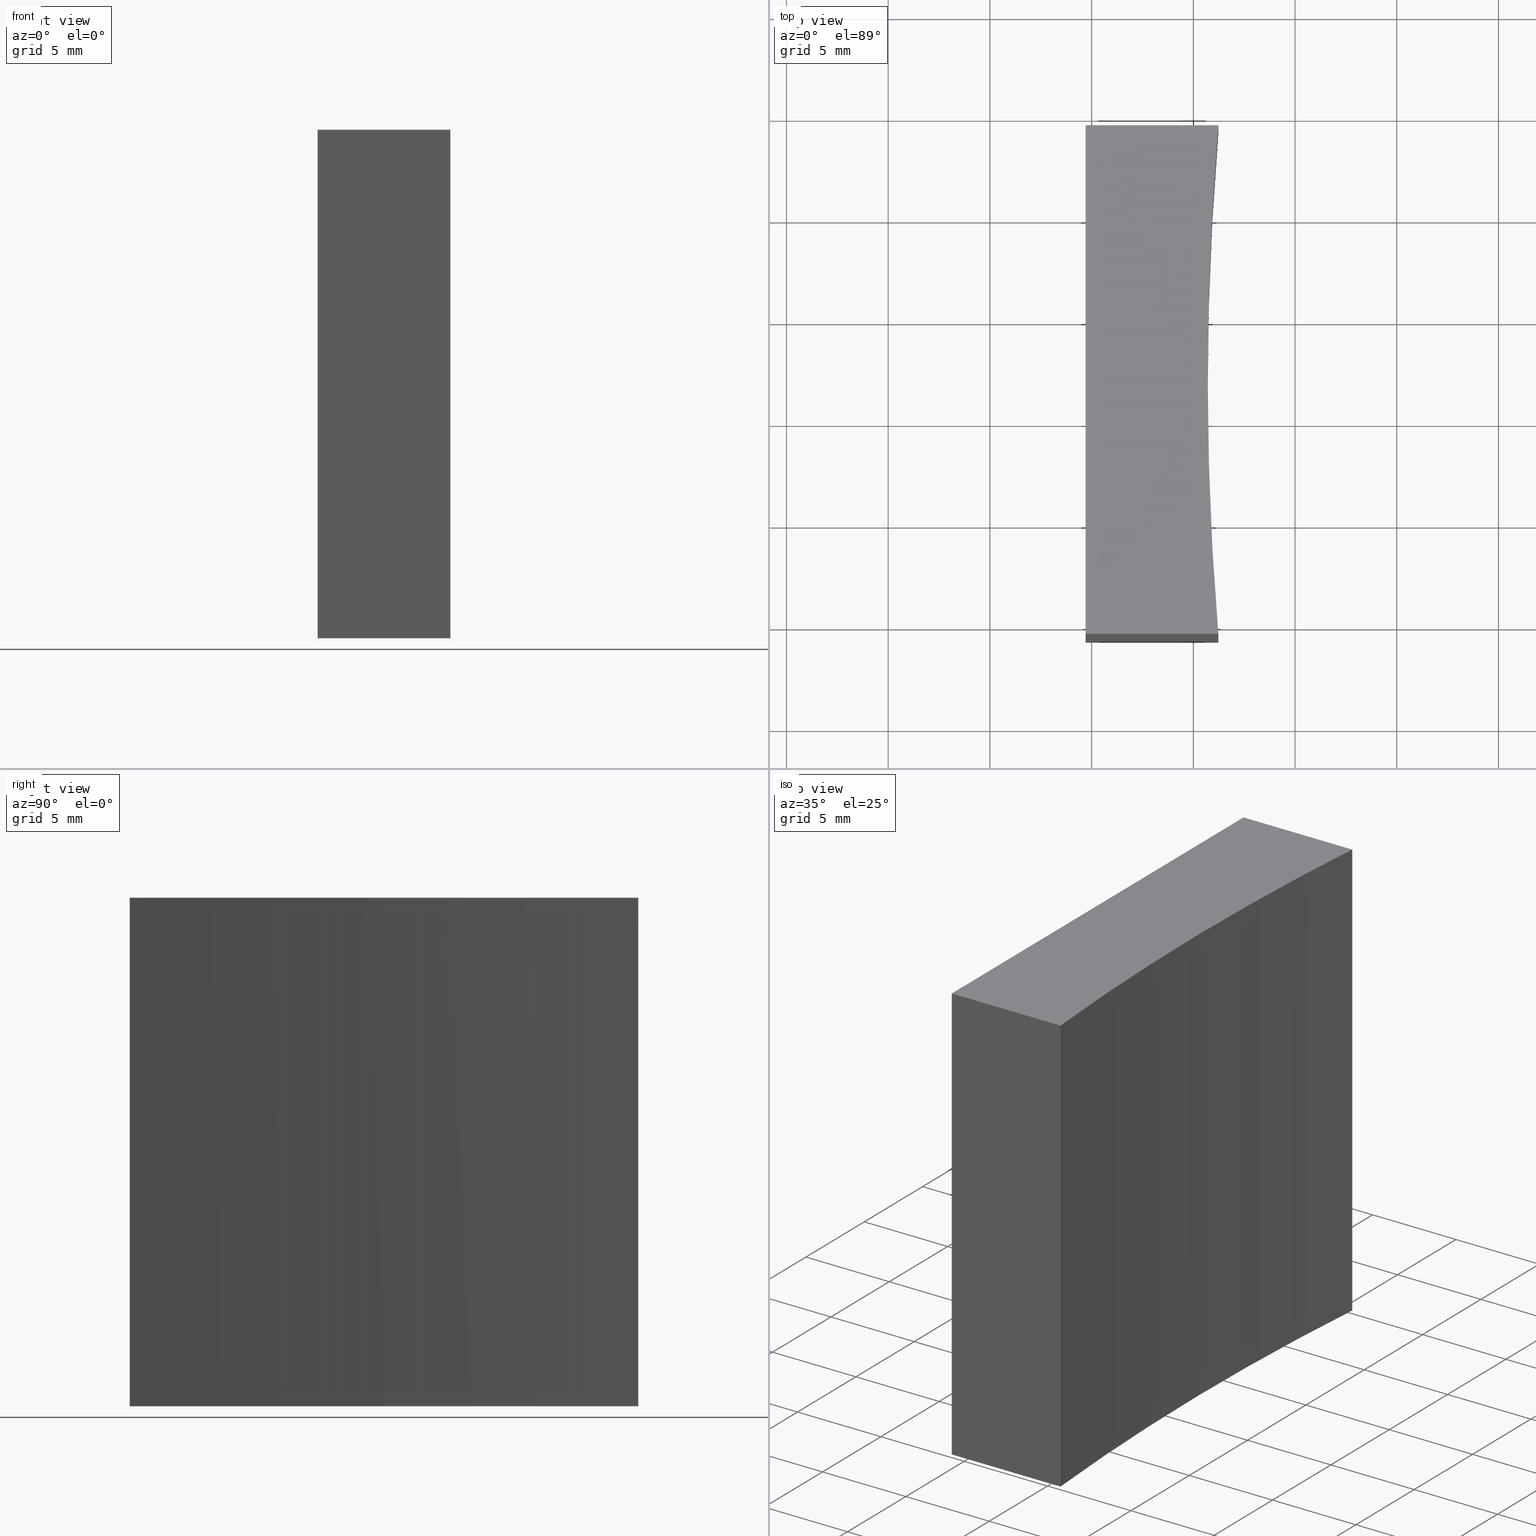
[diagram: canonical four-view strip — front | top / right | iso, engineering-drawing reading convention]
A machine part, canonical four-view strip (front | top / right | iso — engineering-drawing reading convention). The complete STEP part file that produces these views, byte-faithful:
ISO-10303-21;
HEADER;
FILE_DESCRIPTION (( 'STEP AP214' ),
    '1' );
FILE_NAME ('280017.STEP',
    '2019-08-08T02:38:06',
    ( '' ),
    ( '' ),
    'SwSTEP 2.0',
    'SolidWorks 2016',
    '' );
FILE_SCHEMA (( 'AUTOMOTIVE_DESIGN' ));
ENDSEC;

DATA;
#1 = LINE ( 'NONE', #15, #166 ) ;
#2 = ORIENTED_EDGE ( 'NONE', *, *, #11, .F. ) ;
#3 = ORIENTED_EDGE ( 'NONE', *, *, #131, .F. ) ;
#4 = FACE_OUTER_BOUND ( 'NONE', #62, .T. ) ;
#5 = ORIENTED_EDGE ( 'NONE', *, *, #155, .F. ) ;
#6 = PRESENTATION_STYLE_ASSIGNMENT (( #72 ) ) ;
#7 = VERTEX_POINT ( 'NONE', #235 ) ;
#8 = EDGE_LOOP ( 'NONE', ( #127, #2, #207, #165 ) ) ;
#9 = FACE_OUTER_BOUND ( 'NONE', #13, .T. ) ;
#10 = CARTESIAN_POINT ( 'NONE',  ( 291.2288763425366400, 54.35792926776707600, 25.00000000000000000 ) ) ;
#11 = EDGE_CURVE ( 'NONE', #63, #186, #219, .T. ) ;
#12 = DIRECTION ( 'NONE',  ( -1.000000000000000000, 0.0000000000000000000, 0.0000000000000000000 ) ) ;
#13 = EDGE_LOOP ( 'NONE', ( #113, #224, #76, #43, #80 ) ) ;
#14 = CARTESIAN_POINT ( 'NONE',  ( 284.7071356312820900, 66.85792926776707600, 0.0000000000000000000 ) ) ;
#15 = CARTESIAN_POINT ( 'NONE',  ( 284.7071356312820900, 54.35792926776707600, 25.00000000000000000 ) ) ;
#16 = ADVANCED_FACE ( 'NONE', ( #123 ), #69, .T. ) ;
#17 = AXIS2_PLACEMENT_3D ( 'NONE', #210, #48, #46 ) ;
#18 = APPLICATION_PROTOCOL_DEFINITION ( 'draft international standard', 'automotive_design', 1998, #37 ) ;
#19 = EDGE_LOOP ( 'NONE', ( #3, #38, #82, #209 ) ) ;
#20 = EDGE_CURVE ( 'NONE', #233, #172, #25, .T. ) ;
#21 = EDGE_LOOP ( 'NONE', ( #79, #223, #5, #236 ) ) ;
#22 = LINE ( 'NONE', #52, #170 ) ;
#23 = VECTOR ( 'NONE', #143, 1000.000000000000000 ) ;
#24 = AXIS2_PLACEMENT_3D ( 'NONE', #177, #118, #70 ) ;
#25 = LINE ( 'NONE', #230, #23 ) ;
#26 = COLOUR_RGB ( '',1.000000000000000000, 1.000000000000000000, 1.000000000000000000 ) ;
#27 = DIRECTION ( 'NONE',  ( 0.0000000000000000000, 1.000000000000000000, -0.0000000000000000000 ) ) ;
#28 = CARTESIAN_POINT ( 'NONE',  ( 440.7071356313041400, 66.85792926776707600, 0.0000000000000000000 ) ) ;
#29 = DIRECTION ( 'NONE',  ( 1.000000000000000000, 0.0000000000000000000, 0.0000000000000000000 ) ) ;
#30 = MECHANICAL_DESIGN_GEOMETRIC_PRESENTATION_REPRESENTATION (  '', ( #231 ), #77 ) ;
#31 =( NAMED_UNIT ( * ) SI_UNIT ( $, .STERADIAN. ) SOLID_ANGLE_UNIT ( ) );
#32 = DIRECTION ( 'NONE',  ( -1.000000000000000000, 0.0000000000000000000, 0.0000000000000000000 ) ) ;
#33 = FACE_OUTER_BOUND ( 'NONE', #8, .T. ) ;
#34 = ORIENTED_EDGE ( 'NONE', *, *, #131, .T. ) ;
#35 =( NAMED_UNIT ( * ) PLANE_ANGLE_UNIT ( ) SI_UNIT ( $, .RADIAN. ) );
#36 = FILL_AREA_STYLE ('',( #213 ) ) ;
#37 = APPLICATION_CONTEXT ( 'automotive_design' ) ;
#38 = ORIENTED_EDGE ( 'NONE', *, *, #162, .T. ) ;
#39 = VECTOR ( 'NONE', #229, 1000.000000000000000 ) ;
#40 =( LENGTH_UNIT ( ) NAMED_UNIT ( * ) SI_UNIT ( .MILLI., .METRE. ) );
#41 = PRODUCT_CONTEXT ( 'NONE', #37, 'mechanical' ) ;
#42 = SURFACE_STYLE_FILL_AREA ( #36 ) ;
#43 = ORIENTED_EDGE ( 'NONE', *, *, #88, .F. ) ;
#44 = AXIS2_PLACEMENT_3D ( 'NONE', #101, #120, #122 ) ;
#45 = CLOSED_SHELL ( 'NONE', ( #71, #217, #228, #161, #102, #16, #215 ) ) ;
#46 = DIRECTION ( 'NONE',  ( 0.0000000000000000000, -0.0000000000000000000, -1.000000000000000000 ) ) ;
#47 = DIRECTION ( 'NONE',  ( -0.0000000000000000000, -0.0000000000000000000, -1.000000000000000000 ) ) ;
#48 = DIRECTION ( 'NONE',  ( 0.0000000000000000000, -1.000000000000000000, 0.0000000000000000000 ) ) ;
#49 = DIRECTION ( 'NONE',  ( -0.0000000000000000000, -0.0000000000000000000, -1.000000000000000000 ) ) ;
#50 = SURFACE_STYLE_USAGE ( .BOTH. , #196 ) ;
#51 = CARTESIAN_POINT ( 'NONE',  ( 284.7071356312820900, 79.35792926776707600, 25.00000000000000000 ) ) ;
#52 = CARTESIAN_POINT ( 'NONE',  ( 291.2288763425366400, 54.35792926776709800, 25.00000000000000000 ) ) ;
#53 = APPLICATION_CONTEXT ( 'automotive_design' ) ;
#54 = LINE ( 'NONE', #95, #78 ) ;
#55 = EDGE_CURVE ( 'NONE', #106, #7, #73, .T. ) ;
#56 =( NAMED_UNIT ( * ) PLANE_ANGLE_UNIT ( ) SI_UNIT ( $, .RADIAN. ) );
#57 = PRODUCT_DEFINITION_CONTEXT ( 'detailed design', #53, 'design' ) ;
#58 = PRESENTATION_STYLE_ASSIGNMENT (( #50 ) ) ;
#59 = VECTOR ( 'NONE', #191, 1000.000000000000000 ) ;
#60 = UNCERTAINTY_MEASURE_WITH_UNIT (LENGTH_MEASURE( 1.000000000000000100E-005 ), #142, 'distance_accuracy_value', 'NONE');
#61 = ORIENTED_EDGE ( 'NONE', *, *, #162, .F. ) ;
#62 = EDGE_LOOP ( 'NONE', ( #61, #129, #144, #180 ) ) ;
#63 = VERTEX_POINT ( 'NONE', #160 ) ;
#64 = LINE ( 'NONE', #84, #202 ) ;
#65 =( GEOMETRIC_REPRESENTATION_CONTEXT ( 3 ) GLOBAL_UNCERTAINTY_ASSIGNED_CONTEXT ( ( #60 ) ) GLOBAL_UNIT_ASSIGNED_CONTEXT ( ( #142, #35, #31 ) ) REPRESENTATION_CONTEXT ( 'NONE', 'WORKASPACE' ) );
#66 = ORIENTED_EDGE ( 'NONE', *, *, #174, .F. ) ;
#67 = DIRECTION ( 'NONE',  ( -0.0000000000000000000, -0.0000000000000000000, -1.000000000000000000 ) ) ;
#68 = DIRECTION ( 'NONE',  ( 1.000000000000000000, -0.0000000000000000000, -0.0000000000000000000 ) ) ;
#69 = PLANE ( 'NONE',  #169 ) ;
#70 = DIRECTION ( 'NONE',  ( 1.000000000000000000, 0.0000000000000000000, 0.0000000000000000000 ) ) ;
#71 = ADVANCED_FACE ( 'NONE', ( #112 ), #108, .F. ) ;
#72 = SURFACE_STYLE_USAGE ( .BOTH. , #238 ) ;
#73 = CIRCLE ( 'NONE', #205, 150.0000000000000300 ) ;
#74 = EDGE_LOOP ( 'NONE', ( #227, #183, #157, #34, #132 ) ) ;
#75 = UNCERTAINTY_MEASURE_WITH_UNIT (LENGTH_MEASURE( 1.000000000000000100E-005 ), #40, 'distance_accuracy_value', 'NONE');
#76 = ORIENTED_EDGE ( 'NONE', *, *, #91, .F. ) ;
#77 =( GEOMETRIC_REPRESENTATION_CONTEXT ( 3 ) GLOBAL_UNCERTAINTY_ASSIGNED_CONTEXT ( ( #75 ) ) GLOBAL_UNIT_ASSIGNED_CONTEXT ( ( #40, #56, #182 ) ) REPRESENTATION_CONTEXT ( 'NONE', 'WORKASPACE' ) );
#78 = VECTOR ( 'NONE', #159, 1000.000000000000000 ) ;
#79 = ORIENTED_EDGE ( 'NONE', *, *, #117, .T. ) ;
#80 = ORIENTED_EDGE ( 'NONE', *, *, #55, .F. ) ;
#81 = CARTESIAN_POINT ( 'NONE',  ( 440.7071356313041400, 66.85792926776707600, 0.0000000000000000000 ) ) ;
#82 = ORIENTED_EDGE ( 'NONE', *, *, #88, .T. ) ;
#83 = CARTESIAN_POINT ( 'NONE',  ( 284.7071356312820900, 79.35792926776707600, 0.0000000000000000000 ) ) ;
#84 = CARTESIAN_POINT ( 'NONE',  ( 290.7071356313041400, 66.85792926776707600, 25.00000000000000000 ) ) ;
#85 = CIRCLE ( 'NONE', #211, 150.0000000000000300 ) ;
#86 = VERTEX_POINT ( 'NONE', #237 ) ;
#87 = CARTESIAN_POINT ( 'NONE',  ( 291.2288763425366400, 54.35792926776709800, 0.0000000000000000000 ) ) ;
#88 = EDGE_CURVE ( 'NONE', #7, #172, #85, .T. ) ;
#89 = ORIENTED_EDGE ( 'NONE', *, *, #11, .T. ) ;
#90 = LINE ( 'NONE', #141, #59 ) ;
#91 = EDGE_CURVE ( 'NONE', #172, #186, #90, .T. ) ;
#92 = MANIFOLD_SOLID_BREP ( '͹̨-����1', #45 ) ;
#93 = AXIS2_PLACEMENT_3D ( 'NONE', #81, #114, #94 ) ;
#94 = DIRECTION ( 'NONE',  ( 1.000000000000000000, 0.0000000000000000000, -0.0000000000000000000 ) ) ;
#95 = CARTESIAN_POINT ( 'NONE',  ( 291.2288763425366400, 54.35792926776707600, 0.0000000000000000000 ) ) ;
#96 = CARTESIAN_POINT ( 'NONE',  ( 440.7071356313041400, 66.85792926776707600, 0.0000000000000000000 ) ) ;
#97 = PRODUCT_DEFINITION_SHAPE ( 'NONE', 'NONE',  #149 ) ;
#98 = FILL_AREA_STYLE_COLOUR ( '', #26 ) ;
#99 = CARTESIAN_POINT ( 'NONE',  ( 291.2288763425366400, 54.35792926776707600, 25.00000000000000000 ) ) ;
#100 = DIRECTION ( 'NONE',  ( 1.000000000000000000, 0.0000000000000000000, 0.0000000000000000000 ) ) ;
#101 = CARTESIAN_POINT ( 'NONE',  ( 0.0000000000000000000, 0.0000000000000000000, 0.0000000000000000000 ) ) ;
#102 = ADVANCED_FACE ( 'NONE', ( #226 ), #198, .F. ) ;
#103 = CARTESIAN_POINT ( 'NONE',  ( 440.7071356313041400, 66.85792926776707600, 25.00000000000000000 ) ) ;
#104 = VECTOR ( 'NONE', #190, 1000.000000000000000 ) ;
#105 = ORIENTED_EDGE ( 'NONE', *, *, #225, .F. ) ;
#106 = VERTEX_POINT ( 'NONE', #87 ) ;
#107 = EDGE_CURVE ( 'NONE', #185, #106, #22, .T. ) ;
#108 = CYLINDRICAL_SURFACE ( 'NONE', #135, 150.0000000000000300 ) ;
#109 = AXIS2_PLACEMENT_3D ( 'NONE', #158, #116, #12 ) ;
#110 = VERTEX_POINT ( 'NONE', #218 ) ;
#111 = PRESENTATION_LAYER_ASSIGNMENT (  '', '', ( #231 ) ) ;
#112 = FACE_OUTER_BOUND ( 'NONE', #19, .T. ) ;
#113 = ORIENTED_EDGE ( 'NONE', *, *, #117, .F. ) ;
#114 = DIRECTION ( 'NONE',  ( 0.0000000000000000000, 0.0000000000000000000, 1.000000000000000000 ) ) ;
#115 = PLANE ( 'NONE',  #151 ) ;
#116 = DIRECTION ( 'NONE',  ( -0.0000000000000000000, -0.0000000000000000000, -1.000000000000000000 ) ) ;
#117 = EDGE_CURVE ( 'NONE', #86, #106, #54, .T. ) ;
#118 = DIRECTION ( 'NONE',  ( -0.0000000000000000000, -0.0000000000000000000, -1.000000000000000000 ) ) ;
#119 = DIRECTION ( 'NONE',  ( 1.000000000000000000, 0.0000000000000000000, 0.0000000000000000000 ) ) ;
#120 = DIRECTION ( 'NONE',  ( 0.0000000000000000000, 0.0000000000000000000, 1.000000000000000000 ) ) ;
#121 = VECTOR ( 'NONE', #68, 1000.000000000000000 ) ;
#122 = DIRECTION ( 'NONE',  ( 1.000000000000000000, 0.0000000000000000000, 0.0000000000000000000 ) ) ;
#123 = FACE_OUTER_BOUND ( 'NONE', #74, .T. ) ;
#124 = DIRECTION ( 'NONE',  ( -0.0000000000000000000, -0.0000000000000000000, -1.000000000000000000 ) ) ;
#125 = LINE ( 'NONE', #173, #204 ) ;
#126 = EDGE_CURVE ( 'NONE', #185, #222, #128, .T. ) ;
#127 = ORIENTED_EDGE ( 'NONE', *, *, #91, .T. ) ;
#128 = CIRCLE ( 'NONE', #24, 150.0000000000000300 ) ;
#129 = ORIENTED_EDGE ( 'NONE', *, *, #126, .F. ) ;
#130 = STYLED_ITEM ( 'NONE', ( #58 ), #179 ) ;
#131 = EDGE_CURVE ( 'NONE', #222, #233, #221, .T. ) ;
#132 = ORIENTED_EDGE ( 'NONE', *, *, #192, .T. ) ;
#133 = MECHANICAL_DESIGN_GEOMETRIC_PRESENTATION_REPRESENTATION (  '', ( #130 ), #201 ) ;
#134 = CARTESIAN_POINT ( 'NONE',  ( 440.7071356313041400, 66.85792926776707600, 25.00000000000000000 ) ) ;
#135 = AXIS2_PLACEMENT_3D ( 'NONE', #216, #139, #32 ) ;
#136 = CARTESIAN_POINT ( 'NONE',  ( 290.7071356313041400, 66.85792926776707600, 25.00000000000000000 ) ) ;
#137 = CARTESIAN_POINT ( 'NONE',  ( 291.2288763425366400, 79.35792926776707600, 25.00000000000000000 ) ) ;
#138 = DIRECTION ( 'NONE',  ( -0.0000000000000000000, -0.0000000000000000000, -1.000000000000000000 ) ) ;
#139 = DIRECTION ( 'NONE',  ( -0.0000000000000000000, -0.0000000000000000000, -1.000000000000000000 ) ) ;
#140 = CARTESIAN_POINT ( 'NONE',  ( 291.2288763425366400, 54.35792926776709800, 25.00000000000000000 ) ) ;
#141 = CARTESIAN_POINT ( 'NONE',  ( 284.7071356312820900, 79.35792926776707600, 0.0000000000000000000 ) ) ;
#142 =( LENGTH_UNIT ( ) NAMED_UNIT ( * ) SI_UNIT ( .MILLI., .METRE. ) );
#143 = DIRECTION ( 'NONE',  ( -0.0000000000000000000, -0.0000000000000000000, -1.000000000000000000 ) ) ;
#144 = ORIENTED_EDGE ( 'NONE', *, *, #107, .T. ) ;
#145 = CARTESIAN_POINT ( 'NONE',  ( 284.7071356312820900, 66.85792926776707600, 25.00000000000000000 ) ) ;
#146 = UNCERTAINTY_MEASURE_WITH_UNIT (LENGTH_MEASURE( 1.000000000000000100E-005 ), #234, 'distance_accuracy_value', 'NONE');
#147 = PRESENTATION_LAYER_ASSIGNMENT (  '', '', ( #130 ) ) ;
#148 = LINE ( 'NONE', #176, #39 ) ;
#149 = PRODUCT_DEFINITION ( 'δ֪', '', #239, #57 ) ;
#150 = LINE ( 'NONE', #14, #104 ) ;
#151 = AXIS2_PLACEMENT_3D ( 'NONE', #10, #27, #175 ) ;
#152 = CYLINDRICAL_SURFACE ( 'NONE', #109, 150.0000000000000300 ) ;
#153 = AXIS2_PLACEMENT_3D ( 'NONE', #145, #181, #163 ) ;
#154 = SHAPE_DEFINITION_REPRESENTATION ( #97, #179 ) ;
#155 = EDGE_CURVE ( 'NONE', #110, #185, #187, .T. ) ;
#156 = DIRECTION ( 'NONE',  ( -0.0000000000000000000, -1.000000000000000000, -0.0000000000000000000 ) ) ;
#157 = ORIENTED_EDGE ( 'NONE', *, *, #126, .T. ) ;
#158 = CARTESIAN_POINT ( 'NONE',  ( 440.7071356313041400, 66.85792926776707600, 25.00000000000000000 ) ) ;
#159 = DIRECTION ( 'NONE',  ( 1.000000000000000000, -0.0000000000000000000, -0.0000000000000000000 ) ) ;
#160 = CARTESIAN_POINT ( 'NONE',  ( 284.7071356312820900, 79.35792926776707600, 25.00000000000000000 ) ) ;
#161 = ADVANCED_FACE ( 'NONE', ( #33 ), #193, .F. ) ;
#162 = EDGE_CURVE ( 'NONE', #222, #7, #64, .T. ) ;
#163 = DIRECTION ( 'NONE',  ( 0.0000000000000000000, 0.0000000000000000000, -1.000000000000000000 ) ) ;
#164 = APPLICATION_PROTOCOL_DEFINITION ( 'draft international standard', 'automotive_design', 1998, #53 ) ;
#165 = ORIENTED_EDGE ( 'NONE', *, *, #20, .T. ) ;
#166 = VECTOR ( 'NONE', #156, 1000.000000000000000 ) ;
#167 = EDGE_CURVE ( 'NONE', #186, #86, #150, .T. ) ;
#168 = VECTOR ( 'NONE', #49, 1000.000000000000000 ) ;
#169 = AXIS2_PLACEMENT_3D ( 'NONE', #103, #194, #197 ) ;
#170 = VECTOR ( 'NONE', #124, 1000.000000000000000 ) ;
#171 = PRODUCT ( '280017', '280017', '', ( #41 ) ) ;
#172 = VERTEX_POINT ( 'NONE', #214 ) ;
#173 = CARTESIAN_POINT ( 'NONE',  ( 284.7071356312820900, 79.35792926776707600, 25.00000000000000000 ) ) ;
#174 = EDGE_CURVE ( 'NONE', #63, #110, #1, .T. ) ;
#175 = DIRECTION ( 'NONE',  ( 0.0000000000000000000, 0.0000000000000000000, 1.000000000000000000 ) ) ;
#176 = CARTESIAN_POINT ( 'NONE',  ( 284.7071356312820900, 54.35792926776707600, 25.00000000000000000 ) ) ;
#177 = CARTESIAN_POINT ( 'NONE',  ( 440.7071356313041400, 66.85792926776707600, 25.00000000000000000 ) ) ;
#178 =( NAMED_UNIT ( * ) PLANE_ANGLE_UNIT ( ) SI_UNIT ( $, .RADIAN. ) );
#179 = ADVANCED_BREP_SHAPE_REPRESENTATION ( '280017', ( #92, #44 ), #65 ) ;
#180 = ORIENTED_EDGE ( 'NONE', *, *, #55, .T. ) ;
#181 = DIRECTION ( 'NONE',  ( 1.000000000000000000, 0.0000000000000000000, 0.0000000000000000000 ) ) ;
#182 =( NAMED_UNIT ( * ) SI_UNIT ( $, .STERADIAN. ) SOLID_ANGLE_UNIT ( ) );
#183 = ORIENTED_EDGE ( 'NONE', *, *, #155, .T. ) ;
#184 = AXIS2_PLACEMENT_3D ( 'NONE', #134, #232, #29 ) ;
#185 = VERTEX_POINT ( 'NONE', #140 ) ;
#186 = VERTEX_POINT ( 'NONE', #83 ) ;
#187 = LINE ( 'NONE', #99, #121 ) ;
#188 = DIRECTION ( 'NONE',  ( -1.000000000000000000, -0.0000000000000000000, -0.0000000000000000000 ) ) ;
#189 = PLANE ( 'NONE',  #93 ) ;
#190 = DIRECTION ( 'NONE',  ( -0.0000000000000000000, -1.000000000000000000, -0.0000000000000000000 ) ) ;
#191 = DIRECTION ( 'NONE',  ( -1.000000000000000000, -0.0000000000000000000, -0.0000000000000000000 ) ) ;
#192 = EDGE_CURVE ( 'NONE', #233, #63, #125, .T. ) ;
#193 = PLANE ( 'NONE',  #17 ) ;
#194 = DIRECTION ( 'NONE',  ( 0.0000000000000000000, 0.0000000000000000000, 1.000000000000000000 ) ) ;
#195 =( NAMED_UNIT ( * ) SI_UNIT ( $, .STERADIAN. ) SOLID_ANGLE_UNIT ( ) );
#196 = SURFACE_SIDE_STYLE ('',( #220 ) ) ;
#197 = DIRECTION ( 'NONE',  ( 1.000000000000000000, 0.0000000000000000000, -0.0000000000000000000 ) ) ;
#198 = PLANE ( 'NONE',  #153 ) ;
#199 = FACE_OUTER_BOUND ( 'NONE', #21, .T. ) ;
#200 = ORIENTED_EDGE ( 'NONE', *, *, #167, .T. ) ;
#201 =( GEOMETRIC_REPRESENTATION_CONTEXT ( 3 ) GLOBAL_UNCERTAINTY_ASSIGNED_CONTEXT ( ( #146 ) ) GLOBAL_UNIT_ASSIGNED_CONTEXT ( ( #234, #178, #195 ) ) REPRESENTATION_CONTEXT ( 'NONE', 'WORKASPACE' ) );
#202 = VECTOR ( 'NONE', #67, 1000.000000000000000 ) ;
#203 = EDGE_LOOP ( 'NONE', ( #200, #105, #66, #89 ) ) ;
#204 = VECTOR ( 'NONE', #188, 1000.000000000000000 ) ;
#205 = AXIS2_PLACEMENT_3D ( 'NONE', #28, #47, #119 ) ;
#206 = COLOUR_RGB ( '',1.000000000000000000, 1.000000000000000000, 1.000000000000000000 ) ;
#207 = ORIENTED_EDGE ( 'NONE', *, *, #192, .F. ) ;
#208 = PRODUCT_RELATED_PRODUCT_CATEGORY ( 'part', '', ( #171 ) ) ;
#209 = ORIENTED_EDGE ( 'NONE', *, *, #20, .F. ) ;
#210 = CARTESIAN_POINT ( 'NONE',  ( 284.7071356312820900, 79.35792926776707600, 25.00000000000000000 ) ) ;
#211 = AXIS2_PLACEMENT_3D ( 'NONE', #96, #138, #100 ) ;
#212 = FILL_AREA_STYLE ('',( #98 ) ) ;
#213 = FILL_AREA_STYLE_COLOUR ( '', #206 ) ;
#214 = CARTESIAN_POINT ( 'NONE',  ( 291.2288763425366400, 79.35792926776707600, 0.0000000000000000000 ) ) ;
#215 = ADVANCED_FACE ( 'NONE', ( #9 ), #189, .F. ) ;
#216 = CARTESIAN_POINT ( 'NONE',  ( 440.7071356313041400, 66.85792926776707600, 25.00000000000000000 ) ) ;
#217 = ADVANCED_FACE ( 'NONE', ( #199 ), #115, .F. ) ;
#218 = CARTESIAN_POINT ( 'NONE',  ( 284.7071356312820900, 54.35792926776707600, 25.00000000000000000 ) ) ;
#219 = LINE ( 'NONE', #51, #168 ) ;
#220 = SURFACE_STYLE_FILL_AREA ( #212 ) ;
#221 = CIRCLE ( 'NONE', #184, 150.0000000000000300 ) ;
#222 = VERTEX_POINT ( 'NONE', #136 ) ;
#223 = ORIENTED_EDGE ( 'NONE', *, *, #107, .F. ) ;
#224 = ORIENTED_EDGE ( 'NONE', *, *, #167, .F. ) ;
#225 = EDGE_CURVE ( 'NONE', #110, #86, #148, .T. ) ;
#226 = FACE_OUTER_BOUND ( 'NONE', #203, .T. ) ;
#227 = ORIENTED_EDGE ( 'NONE', *, *, #174, .T. ) ;
#228 = ADVANCED_FACE ( 'NONE', ( #4 ), #152, .F. ) ;
#229 = DIRECTION ( 'NONE',  ( -0.0000000000000000000, -0.0000000000000000000, -1.000000000000000000 ) ) ;
#230 = CARTESIAN_POINT ( 'NONE',  ( 291.2288763425366400, 79.35792926776707600, 25.00000000000000000 ) ) ;
#231 = STYLED_ITEM ( 'NONE', ( #6 ), #92 ) ;
#232 = DIRECTION ( 'NONE',  ( -0.0000000000000000000, -0.0000000000000000000, -1.000000000000000000 ) ) ;
#233 = VERTEX_POINT ( 'NONE', #137 ) ;
#234 =( LENGTH_UNIT ( ) NAMED_UNIT ( * ) SI_UNIT ( .MILLI., .METRE. ) );
#235 = CARTESIAN_POINT ( 'NONE',  ( 290.7071356313041400, 66.85792926776707600, 0.0000000000000000000 ) ) ;
#236 = ORIENTED_EDGE ( 'NONE', *, *, #225, .T. ) ;
#237 = CARTESIAN_POINT ( 'NONE',  ( 284.7071356312820900, 54.35792926776707600, 0.0000000000000000000 ) ) ;
#238 = SURFACE_SIDE_STYLE ('',( #42 ) ) ;
#239 = PRODUCT_DEFINITION_FORMATION_WITH_SPECIFIED_SOURCE ( '�κ�', '', #171, .NOT_KNOWN. ) ;
ENDSEC;
END-ISO-10303-21;
